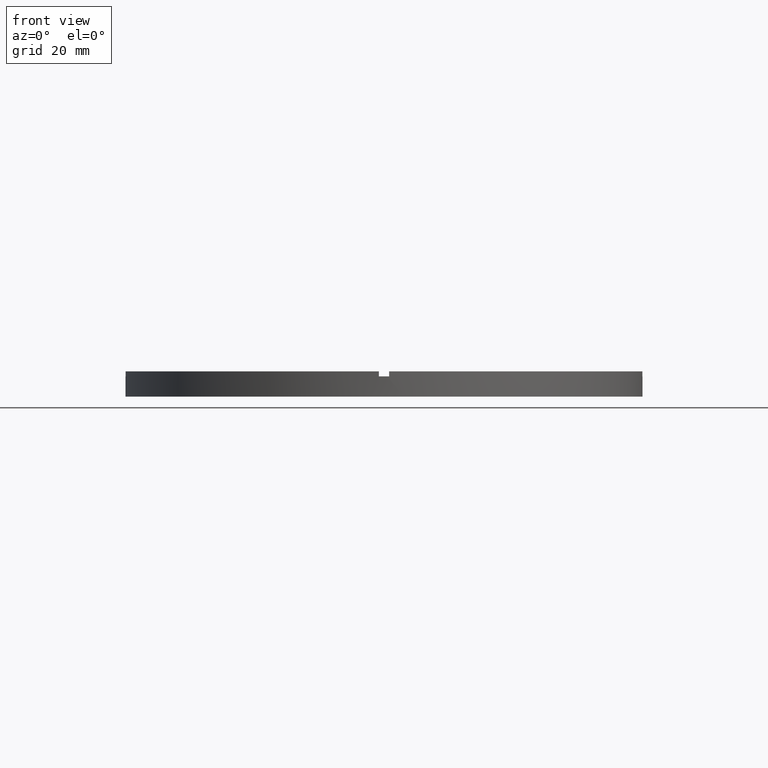
[diagram: clean part render]
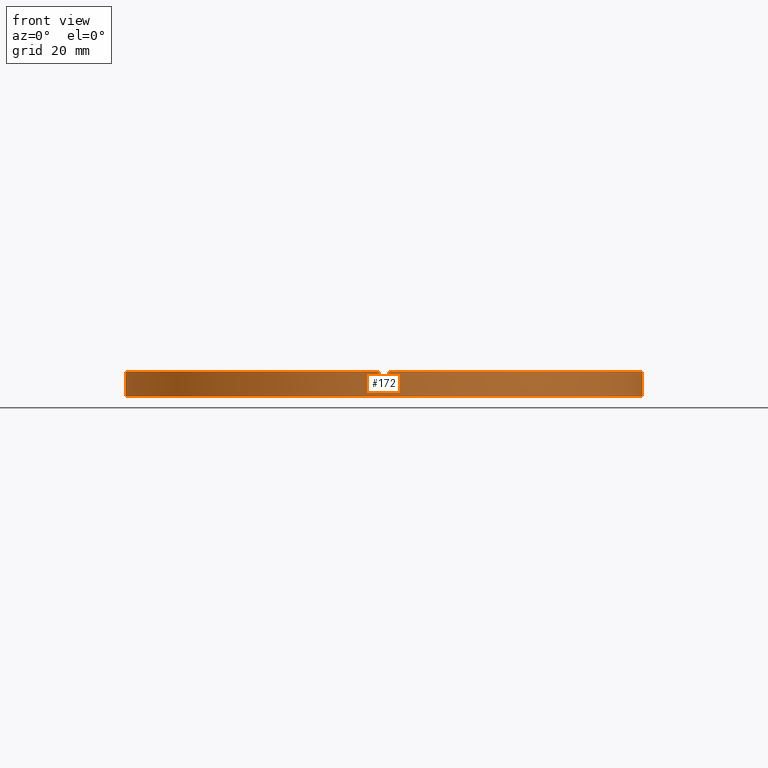
[diagram: same view with one face highlighted and labeled with its STEP entity id]
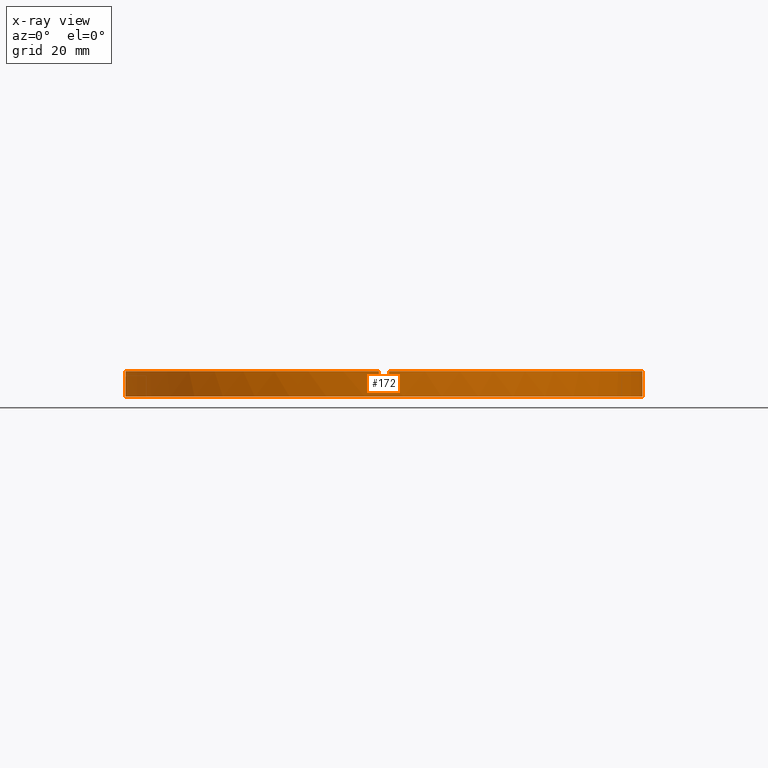
[diagram: x-ray of the same camera — body ghosted, the highlighted face saturated]
A machine part, front view. The second image highlights one B-rep face of the part: STEP entity #172.
The next image is the same camera in x-ray: the body ghosted, the highlighted face saturated — about 0% of this face is hidden behind the body in this view.
In plain terms, the highlighted cylindrical surface (partial cylindrical patch) has radius 51 mm, axis along (-0, -0, -1).
Its self-contained STEP definition (entity closure, byte-faithful):
#13 = VERTEX_POINT ( 'NONE', #441 ) ;
#16 = CARTESIAN_POINT ( 'NONE',  ( 51.00000000000000000, 6.245698675651500444E-15, 0.000000000000000000 ) ) ;
#18 = VERTEX_POINT ( 'NONE', #770 ) ;
#19 = DIRECTION ( 'NONE',  ( -0.000000000000000000, -0.000000000000000000, -1.000000000000000000 ) ) ;
#28 = VERTEX_POINT ( 'NONE', #439 ) ;
#47 = LINE ( 'NONE', #318, #308 ) ;
#48 = CARTESIAN_POINT ( 'NONE',  ( -50.99019513592784136, -1.000000000000031752, 5.000000000000000000 ) ) ;
#54 = CARTESIAN_POINT ( 'NONE',  ( 0.000000000000000000, 0.000000000000000000, 5.000000000000000000 ) ) ;
#81 = CIRCLE ( 'NONE', #186, 51.00000000000000000 ) ;
#82 = EDGE_CURVE ( 'NONE', #289, #136, #47, .T. ) ;
#85 = DIRECTION ( 'NONE',  ( -1.000000000000000000, 0.000000000000000000, 0.000000000000000000 ) ) ;
#103 = CIRCLE ( 'NONE', #244, 51.00000000000000000 ) ;
#107 = DIRECTION ( 'NONE',  ( 1.000000000000000000, 0.000000000000000000, 0.000000000000000000 ) ) ;
#123 = VECTOR ( 'NONE', #296, 1000.000000000000000 ) ;
#124 = DIRECTION ( 'NONE',  ( 0.000000000000000000, 0.000000000000000000, 1.000000000000000000 ) ) ;
#136 = VERTEX_POINT ( 'NONE', #228 ) ;
#137 = AXIS2_PLACEMENT_3D ( 'NONE', #461, #705, #266 ) ;
#167 = ORIENTED_EDGE ( 'NONE', *, *, #583, .F. ) ;
#171 = VERTEX_POINT ( 'NONE', #715 ) ;
#172 = ADVANCED_FACE ( 'NONE', ( #327 ), #599, .T. ) ;
#182 = DIRECTION ( 'NONE',  ( 0.000000000000000000, 0.000000000000000000, 1.000000000000000000 ) ) ;
#185 = EDGE_CURVE ( 'NONE', #13, #232, #319, .T. ) ;
#186 = AXIS2_PLACEMENT_3D ( 'NONE', #579, #754, #410 ) ;
#195 = DIRECTION ( 'NONE',  ( 0.000000000000000000, 0.000000000000000000, 1.000000000000000000 ) ) ;
#202 = CARTESIAN_POINT ( 'NONE',  ( 51.00000000000000000, 6.245698675651500444E-15, 5.000000000000000000 ) ) ;
#209 = CARTESIAN_POINT ( 'NONE',  ( 50.99019513592784136, -1.000000000000154987, 5.000000000000000000 ) ) ;
#211 = ORIENTED_EDGE ( 'NONE', *, *, #477, .F. ) ;
#228 = CARTESIAN_POINT ( 'NONE',  ( -51.00000000000000000, 0.000000000000000000, 0.000000000000000000 ) ) ;
#232 = VERTEX_POINT ( 'NONE', #267 ) ;
#238 = CARTESIAN_POINT ( 'NONE',  ( -51.00000000000000000, 0.000000000000000000, 4.000000000000000000 ) ) ;
#240 = EDGE_CURVE ( 'NONE', #752, #389, #591, .T. ) ;
#241 = DIRECTION ( 'NONE',  ( -0.000000000000000000, -0.000000000000000000, -1.000000000000000000 ) ) ;
#244 = AXIS2_PLACEMENT_3D ( 'NONE', #740, #195, #367 ) ;
#245 = ORIENTED_EDGE ( 'NONE', *, *, #185, .T. ) ;
#260 = EDGE_CURVE ( 'NONE', #171, #655, #354, .T. ) ;
#266 = DIRECTION ( 'NONE',  ( 1.000000000000000000, 0.000000000000000000, 0.000000000000000000 ) ) ;
#267 = CARTESIAN_POINT ( 'NONE',  ( 0.9999999999998434586, -50.99019513592784847, 4.000000000000000000 ) ) ;
#278 = CARTESIAN_POINT ( 'NONE',  ( 0.000000000000000000, 0.000000000000000000, 4.000000000000000000 ) ) ;
#289 = VERTEX_POINT ( 'NONE', #238 ) ;
#292 = ORIENTED_EDGE ( 'NONE', *, *, #82, .T. ) ;
#294 = EDGE_LOOP ( 'NONE', ( #211, #675, #297, #167, #245, #751, #298, #661, #425, #676, #292, #687 ) ) ;
#296 = DIRECTION ( 'NONE',  ( 0.000000000000000000, 0.000000000000000000, 1.000000000000000000 ) ) ;
#297 = ORIENTED_EDGE ( 'NONE', *, *, #608, .T. ) ;
#298 = ORIENTED_EDGE ( 'NONE', *, *, #541, .T. ) ;
#308 = VECTOR ( 'NONE', #19, 1000.000000000000000 ) ;
#318 = CARTESIAN_POINT ( 'NONE',  ( -51.00000000000000000, 0.000000000000000000, 5.000000000000000000 ) ) ;
#319 = LINE ( 'NONE', #334, #321 ) ;
#321 = VECTOR ( 'NONE', #516, 1000.000000000000000 ) ;
#327 = FACE_OUTER_BOUND ( 'NONE', #294, .T. ) ;
#334 = CARTESIAN_POINT ( 'NONE',  ( 0.9999999999998434586, -50.99019513592784847, 5.000000000000000000 ) ) ;
#342 = VECTOR ( 'NONE', #647, 1000.000000000000000 ) ;
#344 = EDGE_CURVE ( 'NONE', #752, #548, #589, .T. ) ;
#350 = VECTOR ( 'NONE', #241, 1000.000000000000000 ) ;
#353 = DIRECTION ( 'NONE',  ( 0.000000000000000000, 0.000000000000000000, 1.000000000000000000 ) ) ;
#354 = CIRCLE ( 'NONE', #762, 51.00000000000000000 ) ;
#365 = VECTOR ( 'NONE', #491, 1000.000000000000000 ) ;
#367 = DIRECTION ( 'NONE',  ( 1.000000000000000000, 0.000000000000000000, 0.000000000000000000 ) ) ;
#377 = AXIS2_PLACEMENT_3D ( 'NONE', #54, #124, #731 ) ;
#386 = CIRCLE ( 'NONE', #377, 51.00000000000000000 ) ;
#389 = VERTEX_POINT ( 'NONE', #729 ) ;
#410 = DIRECTION ( 'NONE',  ( 1.000000000000000000, 0.000000000000000000, 0.000000000000000000 ) ) ;
#425 = ORIENTED_EDGE ( 'NONE', *, *, #344, .T. ) ;
#430 = EDGE_CURVE ( 'NONE', #28, #232, #81, .T. ) ;
#439 = CARTESIAN_POINT ( 'NONE',  ( -1.000000000000156541, -50.99019513592784136, 4.000000000000000000 ) ) ;
#441 = CARTESIAN_POINT ( 'NONE',  ( 0.9999999999998434586, -50.99019513592784847, 5.000000000000000000 ) ) ;
#461 = CARTESIAN_POINT ( 'NONE',  ( 0.000000000000000000, 0.000000000000000000, 5.000000000000000000 ) ) ;
#473 = CARTESIAN_POINT ( 'NONE',  ( -50.99019513592784136, -1.000000000000031752, 5.000000000000000000 ) ) ;
#477 = EDGE_CURVE ( 'NONE', #655, #704, #605, .T. ) ;
#479 = AXIS2_PLACEMENT_3D ( 'NONE', #710, #182, #573 ) ;
#484 = CARTESIAN_POINT ( 'NONE',  ( -50.99019513592784136, -1.000000000000031752, 4.000000000000000000 ) ) ;
#491 = DIRECTION ( 'NONE',  ( 0.000000000000000000, 0.000000000000000000, 1.000000000000000000 ) ) ;
#499 = AXIS2_PLACEMENT_3D ( 'NONE', #626, #707, #85 ) ;
#506 = EDGE_CURVE ( 'NONE', #136, #704, #103, .T. ) ;
#516 = DIRECTION ( 'NONE',  ( -0.000000000000000000, -0.000000000000000000, -1.000000000000000000 ) ) ;
#527 = CARTESIAN_POINT ( 'NONE',  ( -1.000000000000156541, -50.99019513592784136, 5.000000000000000000 ) ) ;
#541 = EDGE_CURVE ( 'NONE', #28, #389, #634, .T. ) ;
#548 = VERTEX_POINT ( 'NONE', #484 ) ;
#573 = DIRECTION ( 'NONE',  ( 1.000000000000000000, 0.000000000000000000, 0.000000000000000000 ) ) ;
#579 = CARTESIAN_POINT ( 'NONE',  ( 0.000000000000000000, 0.000000000000000000, 4.000000000000000000 ) ) ;
#583 = EDGE_CURVE ( 'NONE', #13, #18, #386, .T. ) ;
#589 = LINE ( 'NONE', #48, #342 ) ;
#591 = CIRCLE ( 'NONE', #137, 51.00000000000000000 ) ;
#599 = CYLINDRICAL_SURFACE ( 'NONE', #499, 51.00000000000000000 ) ;
#605 = LINE ( 'NONE', #202, #350 ) ;
#608 = EDGE_CURVE ( 'NONE', #171, #18, #632, .T. ) ;
#617 = CIRCLE ( 'NONE', #479, 51.00000000000000000 ) ;
#626 = CARTESIAN_POINT ( 'NONE',  ( 0.000000000000000000, 0.000000000000000000, 5.000000000000000000 ) ) ;
#632 = LINE ( 'NONE', #209, #123 ) ;
#634 = LINE ( 'NONE', #527, #365 ) ;
#647 = DIRECTION ( 'NONE',  ( -0.000000000000000000, -0.000000000000000000, -1.000000000000000000 ) ) ;
#655 = VERTEX_POINT ( 'NONE', #695 ) ;
#661 = ORIENTED_EDGE ( 'NONE', *, *, #240, .F. ) ;
#675 = ORIENTED_EDGE ( 'NONE', *, *, #260, .F. ) ;
#676 = ORIENTED_EDGE ( 'NONE', *, *, #736, .F. ) ;
#687 = ORIENTED_EDGE ( 'NONE', *, *, #506, .T. ) ;
#695 = CARTESIAN_POINT ( 'NONE',  ( 51.00000000000000000, 6.245698675651500444E-15, 4.000000000000000000 ) ) ;
#704 = VERTEX_POINT ( 'NONE', #16 ) ;
#705 = DIRECTION ( 'NONE',  ( 0.000000000000000000, 0.000000000000000000, 1.000000000000000000 ) ) ;
#707 = DIRECTION ( 'NONE',  ( -0.000000000000000000, -0.000000000000000000, -1.000000000000000000 ) ) ;
#710 = CARTESIAN_POINT ( 'NONE',  ( 0.000000000000000000, 0.000000000000000000, 4.000000000000000000 ) ) ;
#715 = CARTESIAN_POINT ( 'NONE',  ( 50.99019513592784136, -1.000000000000154987, 4.000000000000000000 ) ) ;
#729 = CARTESIAN_POINT ( 'NONE',  ( -1.000000000000156541, -50.99019513592784136, 5.000000000000000000 ) ) ;
#731 = DIRECTION ( 'NONE',  ( 1.000000000000000000, 0.000000000000000000, 0.000000000000000000 ) ) ;
#736 = EDGE_CURVE ( 'NONE', #289, #548, #617, .T. ) ;
#740 = CARTESIAN_POINT ( 'NONE',  ( 0.000000000000000000, 0.000000000000000000, 0.000000000000000000 ) ) ;
#751 = ORIENTED_EDGE ( 'NONE', *, *, #430, .F. ) ;
#752 = VERTEX_POINT ( 'NONE', #473 ) ;
#754 = DIRECTION ( 'NONE',  ( -0.000000000000000000, 0.000000000000000000, 1.000000000000000000 ) ) ;
#762 = AXIS2_PLACEMENT_3D ( 'NONE', #278, #353, #107 ) ;
#770 = CARTESIAN_POINT ( 'NONE',  ( 50.99019513592784136, -1.000000000000154987, 5.000000000000000000 ) ) ;